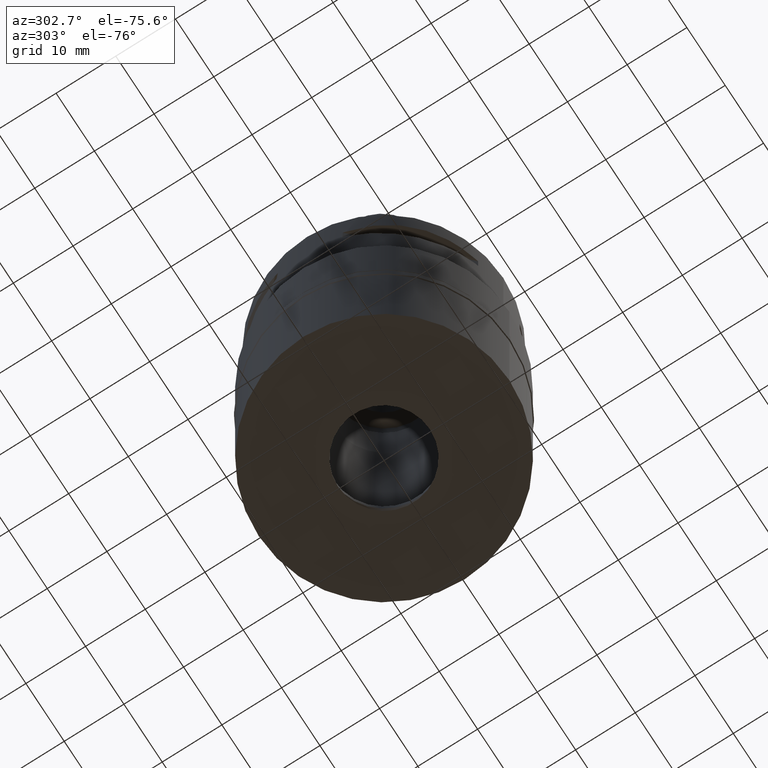
[diagram: clean part render]
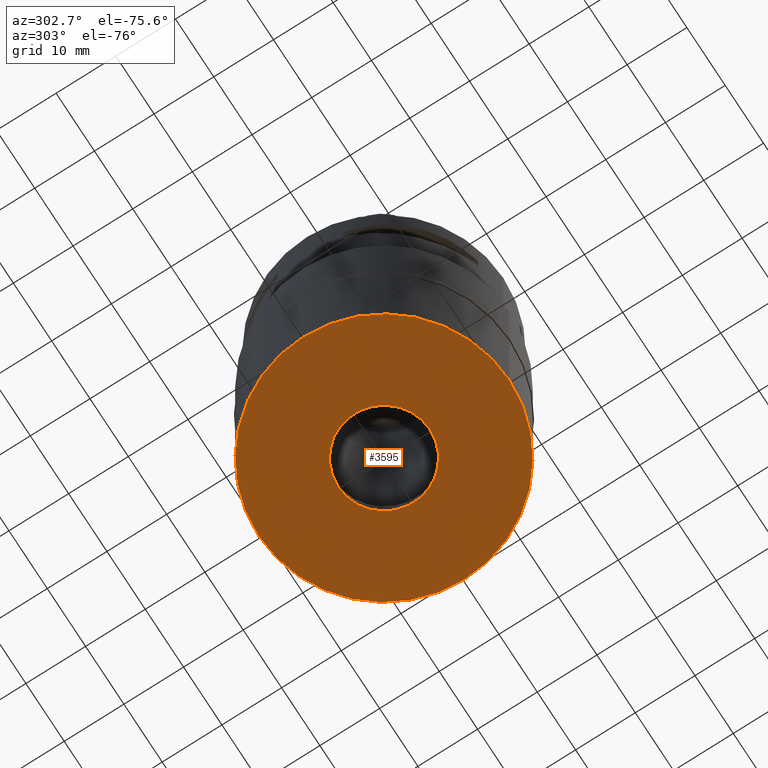
[diagram: same view with one face highlighted and labeled with its STEP entity id]
A machine part, auxiliary view. The second image highlights one B-rep face of the part: STEP entity #3595.
In plain terms, the highlighted planar face has unit normal (0, 0, -1).
Its self-contained STEP definition (entity closure, byte-faithful):
#14 = AXIS2_PLACEMENT_3D ( 'NONE', #955, #4209, #1009 ) ;
#107 = EDGE_CURVE ( 'NONE', #647, #247, #2534, .T. ) ;
#247 = VERTEX_POINT ( 'NONE', #2511 ) ;
#250 = CARTESIAN_POINT ( 'NONE',  ( 0.0000000000000000000, 0.0000000000000000000, -24.29999999999999716 ) ) ;
#559 = DIRECTION ( 'NONE',  ( 0.0000000000000000000, 1.000000000000000000, 0.0000000000000000000 ) ) ;
#562 = CARTESIAN_POINT ( 'NONE',  ( 0.0000000000000000000, -21.00000000000000000, -24.29999999999999716 ) ) ;
#598 = DIRECTION ( 'NONE',  ( 0.0000000000000000000, 0.0000000000000000000, -1.000000000000000000 ) ) ;
#607 = CIRCLE ( 'NONE', #1210, 21.00000000000000000 ) ;
#647 = VERTEX_POINT ( 'NONE', #562 ) ;
#653 = FACE_BOUND ( 'NONE', #4287, .T. ) ;
#687 = CIRCLE ( 'NONE', #3544, 7.700000000000000178 ) ;
#955 = CARTESIAN_POINT ( 'NONE',  ( 0.0000000000000000000, 0.0000000000000000000, -24.29999999999999716 ) ) ;
#973 = ORIENTED_EDGE ( 'NONE', *, *, #1553, .F. ) ;
#1009 = DIRECTION ( 'NONE',  ( 0.0000000000000000000, -1.000000000000000000, 0.0000000000000000000 ) ) ;
#1210 = AXIS2_PLACEMENT_3D ( 'NONE', #3810, #4521, #559 ) ;
#1272 = DIRECTION ( 'NONE',  ( 0.0000000000000000000, -1.000000000000000000, 0.0000000000000000000 ) ) ;
#1273 = AXIS2_PLACEMENT_3D ( 'NONE', #4482, #3010, #1272 ) ;
#1342 = PLANE ( 'NONE',  #14 ) ;
#1553 = EDGE_CURVE ( 'NONE', #4046, #3871, #687, .T. ) ;
#1672 = CIRCLE ( 'NONE', #3098, 7.700000000000000178 ) ;
#1759 = ORIENTED_EDGE ( 'NONE', *, *, #107, .F. ) ;
#1915 = EDGE_LOOP ( 'NONE', ( #4627, #1759 ) ) ;
#1943 = EDGE_CURVE ( 'NONE', #247, #647, #607, .T. ) ;
#2011 = DIRECTION ( 'NONE',  ( 0.0000000000000000000, -1.000000000000000000, 0.0000000000000000000 ) ) ;
#2085 = FACE_OUTER_BOUND ( 'NONE', #1915, .T. ) ;
#2511 = CARTESIAN_POINT ( 'NONE',  ( 0.0000000000000000000, 21.00000000000000000, -24.29999999999999716 ) ) ;
#2534 = CIRCLE ( 'NONE', #1273, 21.00000000000000000 ) ;
#3010 = DIRECTION ( 'NONE',  ( 0.0000000000000000000, 0.0000000000000000000, 1.000000000000000000 ) ) ;
#3098 = AXIS2_PLACEMENT_3D ( 'NONE', #3513, #4251, #4413 ) ;
#3429 = ORIENTED_EDGE ( 'NONE', *, *, #4312, .F. ) ;
#3513 = CARTESIAN_POINT ( 'NONE',  ( 0.0000000000000000000, 0.0000000000000000000, -24.29999999999999716 ) ) ;
#3544 = AXIS2_PLACEMENT_3D ( 'NONE', #250, #598, #2011 ) ;
#3595 = ADVANCED_FACE ( 'NONE', ( #2085, #653 ), #1342, .T. ) ;
#3810 = CARTESIAN_POINT ( 'NONE',  ( 0.0000000000000000000, 0.0000000000000000000, -24.29999999999999716 ) ) ;
#3871 = VERTEX_POINT ( 'NONE', #4553 ) ;
#4046 = VERTEX_POINT ( 'NONE', #4332 ) ;
#4209 = DIRECTION ( 'NONE',  ( 0.0000000000000000000, 0.0000000000000000000, -1.000000000000000000 ) ) ;
#4251 = DIRECTION ( 'NONE',  ( 0.0000000000000000000, 0.0000000000000000000, -1.000000000000000000 ) ) ;
#4287 = EDGE_LOOP ( 'NONE', ( #3429, #973 ) ) ;
#4312 = EDGE_CURVE ( 'NONE', #3871, #4046, #1672, .T. ) ;
#4332 = CARTESIAN_POINT ( 'NONE',  ( 0.0000000000000000000, -7.700000000000000178, -24.29999999999999716 ) ) ;
#4413 = DIRECTION ( 'NONE',  ( 0.0000000000000000000, 1.000000000000000000, 0.0000000000000000000 ) ) ;
#4482 = CARTESIAN_POINT ( 'NONE',  ( 0.0000000000000000000, 0.0000000000000000000, -24.29999999999999716 ) ) ;
#4521 = DIRECTION ( 'NONE',  ( 0.0000000000000000000, 0.0000000000000000000, 1.000000000000000000 ) ) ;
#4553 = CARTESIAN_POINT ( 'NONE',  ( 0.0000000000000000000, 7.700000000000000178, -24.29999999999999716 ) ) ;
#4627 = ORIENTED_EDGE ( 'NONE', *, *, #1943, .F. ) ;